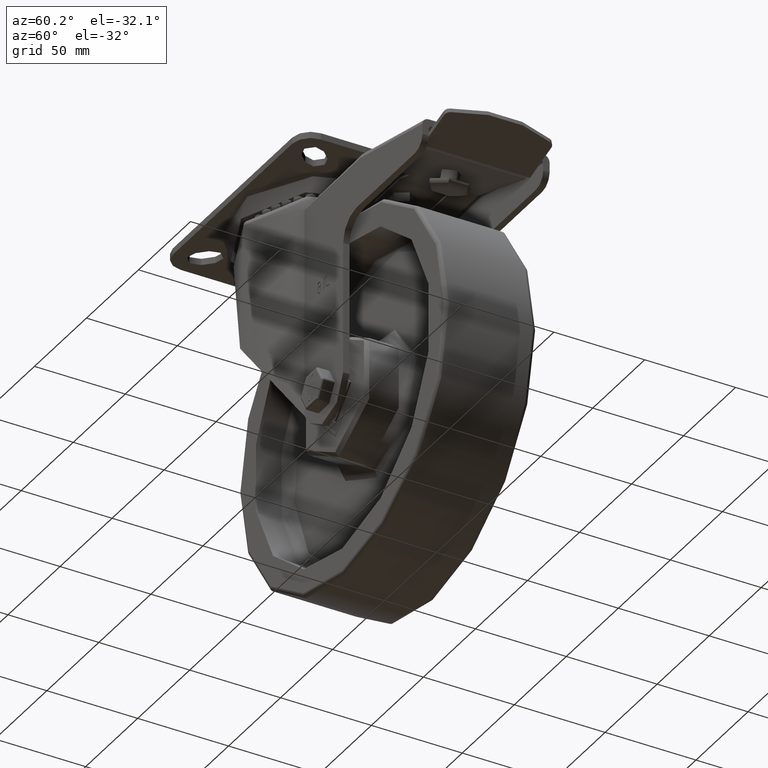
[diagram: clean part render]
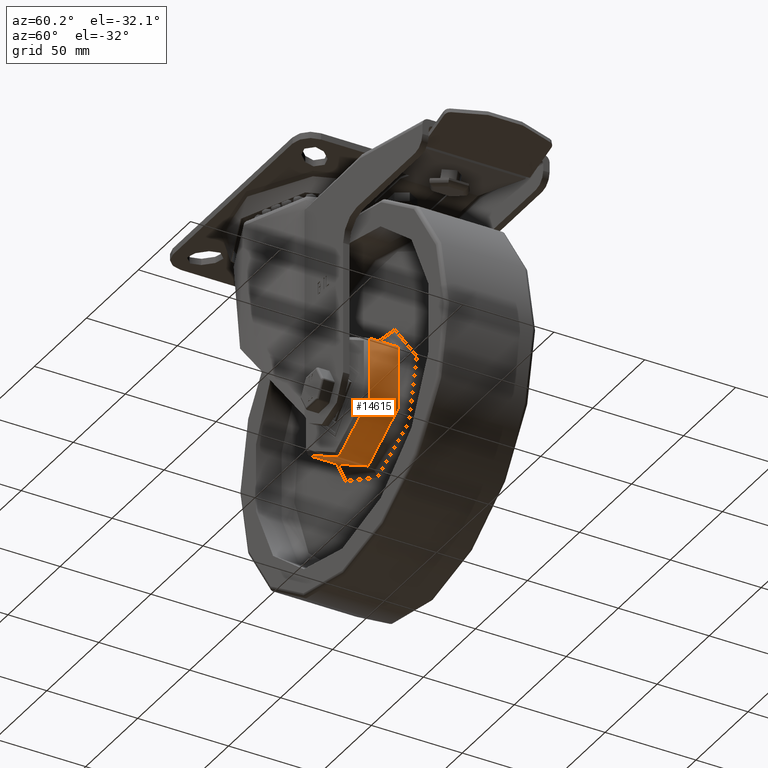
[diagram: same view with one face highlighted and labeled with its STEP entity id]
A machine part, auxiliary view. The second image highlights one B-rep face of the part: STEP entity #14615.
In plain terms, the highlighted cylindrical surface (bore or boss wall) has radius 34 mm, axis along (0, 1, 0).
Its self-contained STEP definition (entity closure, byte-faithful):
#1948=FACE_OUTER_BOUND('',#2822,.T.);
#2822=EDGE_LOOP('',(#10146,#10147,#10148,#10149));
#3839=LINE('',#20988,#4902);
#4902=VECTOR('',#17227,34.);
#5966=CIRCLE('',#15756,34.);
#5991=CIRCLE('',#15793,34.);
#6482=VERTEX_POINT('',#20918);
#6503=VERTEX_POINT('',#20984);
#7916=EDGE_CURVE('',#6482,#6482,#5966,.T.);
#7950=EDGE_CURVE('',#6503,#6503,#5991,.T.);
#7951=EDGE_CURVE('',#6503,#6482,#3839,.T.);
#10146=ORIENTED_EDGE('',*,*,#7950,.F.);
#10147=ORIENTED_EDGE('',*,*,#7951,.T.);
#10148=ORIENTED_EDGE('',*,*,#7916,.T.);
#10149=ORIENTED_EDGE('',*,*,#7951,.F.);
#14396=CYLINDRICAL_SURFACE('',#15794,34.);
#14615=ADVANCED_FACE('',(#1948),#14396,.T.);
#15756=AXIS2_PLACEMENT_3D('',#20919,#17140,#17141);
#15793=AXIS2_PLACEMENT_3D('',#20986,#17223,#17224);
#15794=AXIS2_PLACEMENT_3D('',#20987,#17225,#17226);
#17140=DIRECTION('center_axis',(0.,1.,0.));
#17141=DIRECTION('ref_axis',(0.,0.,1.));
#17223=DIRECTION('center_axis',(0.,1.,0.));
#17224=DIRECTION('ref_axis',(0.,0.,1.));
#17225=DIRECTION('center_axis',(0.,1.,0.));
#17226=DIRECTION('ref_axis',(0.,0.,1.));
#17227=DIRECTION('',(0.,-1.,0.));
#20918=CARTESIAN_POINT('',(4.163799117101E-15,-27.,-34.));
#20919=CARTESIAN_POINT('Origin',(0.,-27.,0.));
#20984=CARTESIAN_POINT('',(-4.163799117101E-15,-10.75,-34.));
#20986=CARTESIAN_POINT('Origin',(0.,-10.75,0.));
#20987=CARTESIAN_POINT('Origin',(0.,-18.875,0.));
#20988=CARTESIAN_POINT('',(-4.163799117101E-15,-18.875,-34.));